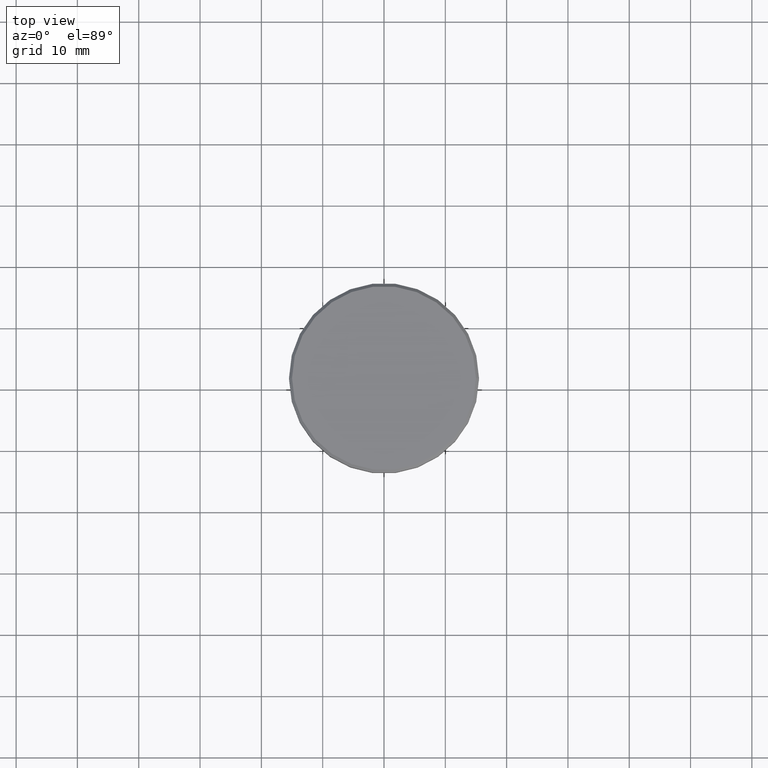
[diagram: clean part render]
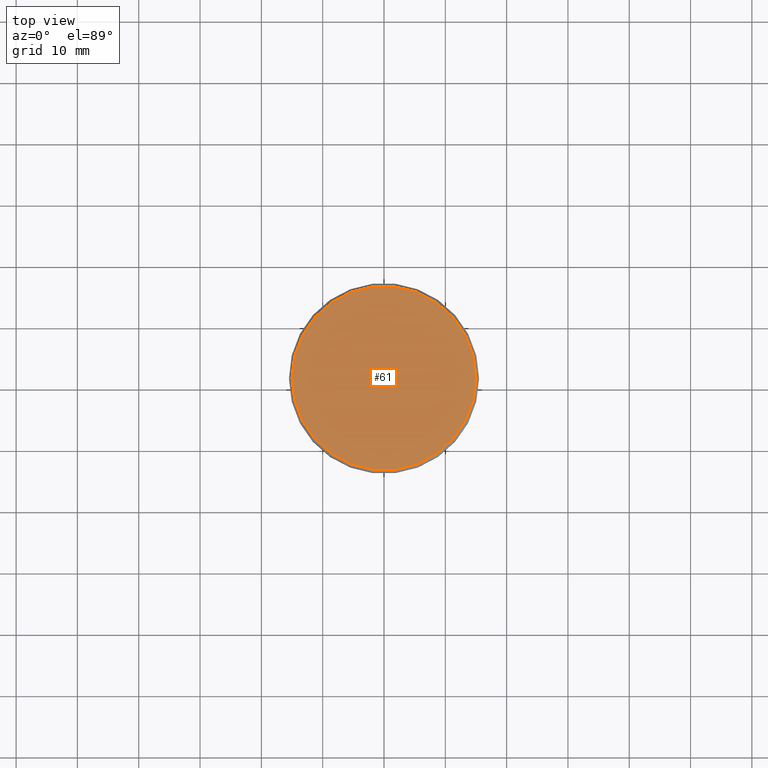
[diagram: same view with one face highlighted and labeled with its STEP entity id]
A machine part, top view. The second image highlights one B-rep face of the part: STEP entity #61.
In plain terms, the highlighted planar face has unit normal (0, -0, 1).
Its self-contained STEP definition (entity closure, byte-faithful):
#38 = AXIS2_PLACEMENT_3D ( 'NONE', #103, #550, #726 ) ;
#49 = EDGE_LOOP ( 'NONE', ( #480, #787 ) ) ;
#61 = ADVANCED_FACE ( 'NONE', ( #176 ), #735, .T. ) ;
#103 = CARTESIAN_POINT ( 'NONE',  ( 0.000000000000000000, 0.000000000000000000, 0.000000000000000000 ) ) ;
#131 = DIRECTION ( 'NONE',  ( 1.000000000000000000, 0.000000000000000000, 0.000000000000000000 ) ) ;
#154 = VERTEX_POINT ( 'NONE', #1019 ) ;
#176 = FACE_OUTER_BOUND ( 'NONE', #49, .T. ) ;
#201 = CARTESIAN_POINT ( 'NONE',  ( 0.000000000000000000, 0.000000000000000000, 0.000000000000000000 ) ) ;
#207 = VERTEX_POINT ( 'NONE', #1126 ) ;
#225 = CARTESIAN_POINT ( 'NONE',  ( 0.000000000000000000, 0.000000000000000000, 0.000000000000000000 ) ) ;
#246 = CIRCLE ( 'NONE', #38, 15.00000000000001421 ) ;
#480 = ORIENTED_EDGE ( 'NONE', *, *, #847, .T. ) ;
#520 = EDGE_CURVE ( 'NONE', #154, #207, #246, .T. ) ;
#550 = DIRECTION ( 'NONE',  ( -0.000000000000000000, -0.000000000000000000, 1.000000000000000000 ) ) ;
#554 = DIRECTION ( 'NONE',  ( 1.000000000000000000, 0.000000000000000000, 0.000000000000000000 ) ) ;
#627 = AXIS2_PLACEMENT_3D ( 'NONE', #201, #633, #554 ) ;
#633 = DIRECTION ( 'NONE',  ( 0.000000000000000000, -0.000000000000000000, 1.000000000000000000 ) ) ;
#638 = AXIS2_PLACEMENT_3D ( 'NONE', #225, #941, #131 ) ;
#672 = CIRCLE ( 'NONE', #638, 15.00000000000001421 ) ;
#726 = DIRECTION ( 'NONE',  ( 1.000000000000000000, 0.000000000000000000, 0.000000000000000000 ) ) ;
#735 = PLANE ( 'NONE',  #627 ) ;
#787 = ORIENTED_EDGE ( 'NONE', *, *, #520, .T. ) ;
#847 = EDGE_CURVE ( 'NONE', #207, #154, #672, .T. ) ;
#941 = DIRECTION ( 'NONE',  ( -0.000000000000000000, -0.000000000000000000, 1.000000000000000000 ) ) ;
#1019 = CARTESIAN_POINT ( 'NONE',  ( 15.00000000000001421, 1.867586368699714559E-15, 0.000000000000000000 ) ) ;
#1126 = CARTESIAN_POINT ( 'NONE',  ( -15.00000000000001421, 0.000000000000000000, 0.000000000000000000 ) ) ;